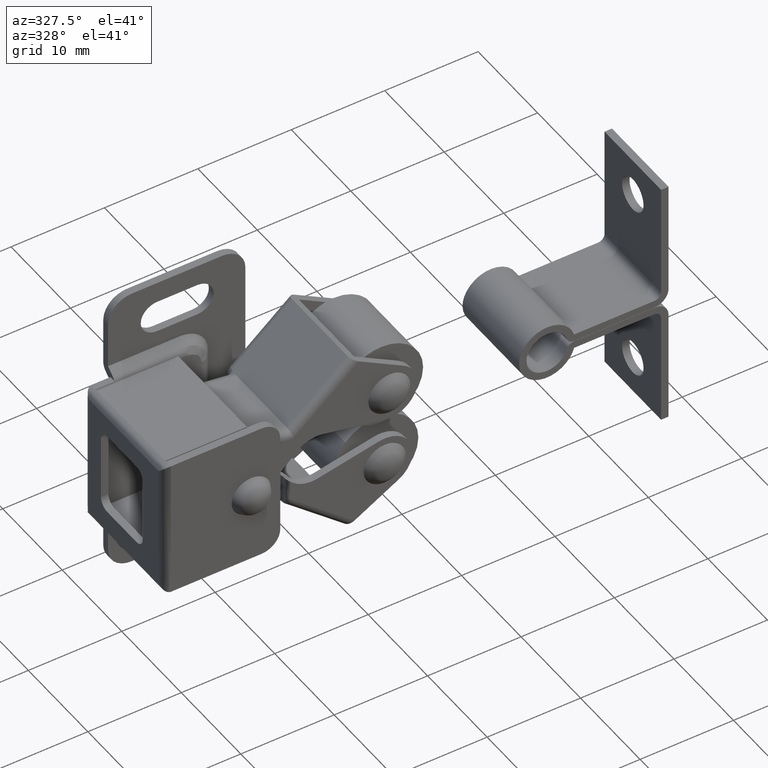
[diagram: clean part render]
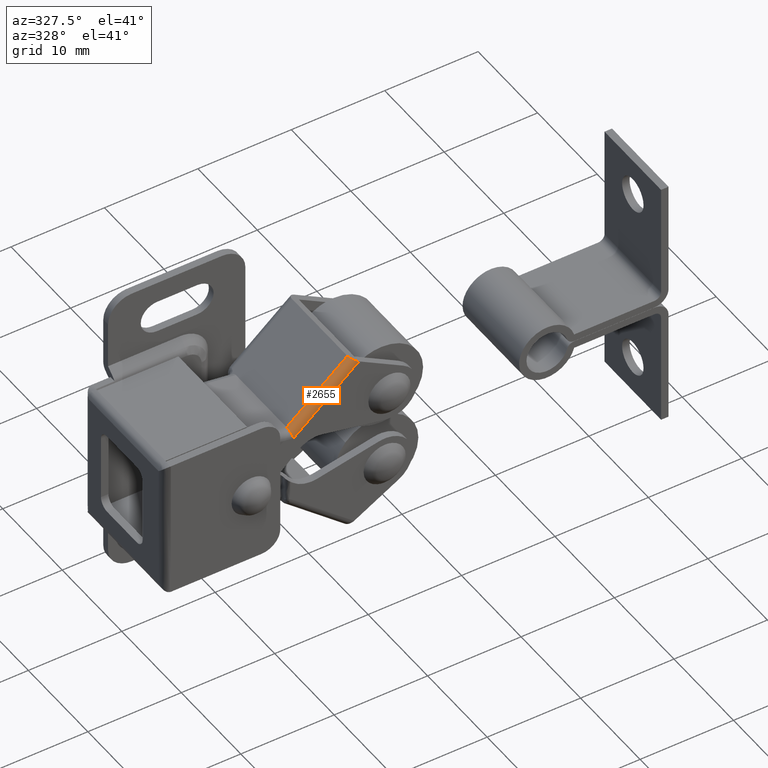
[diagram: same view with one face highlighted and labeled with its STEP entity id]
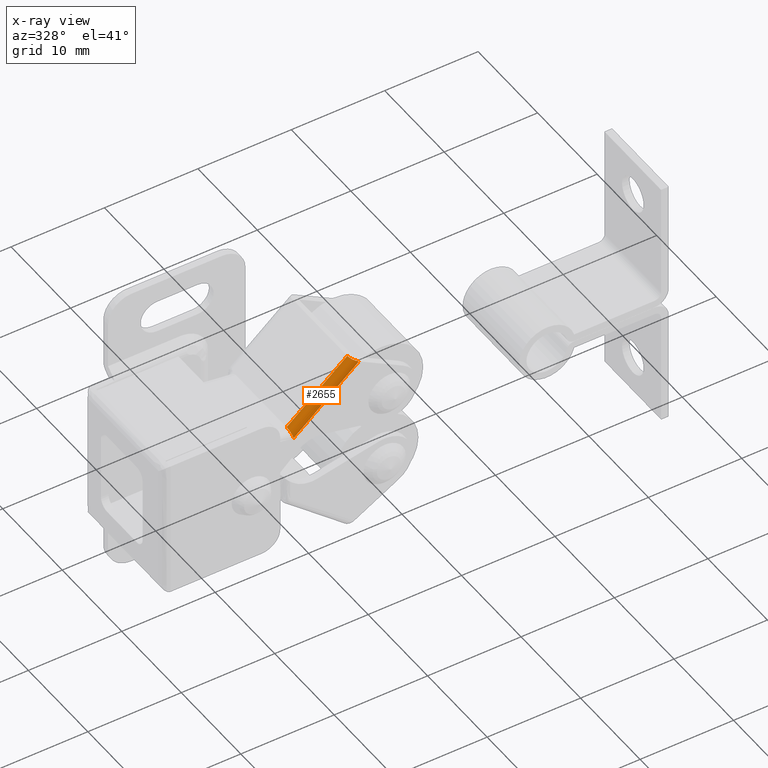
[diagram: x-ray of the same camera — body ghosted, the highlighted face saturated]
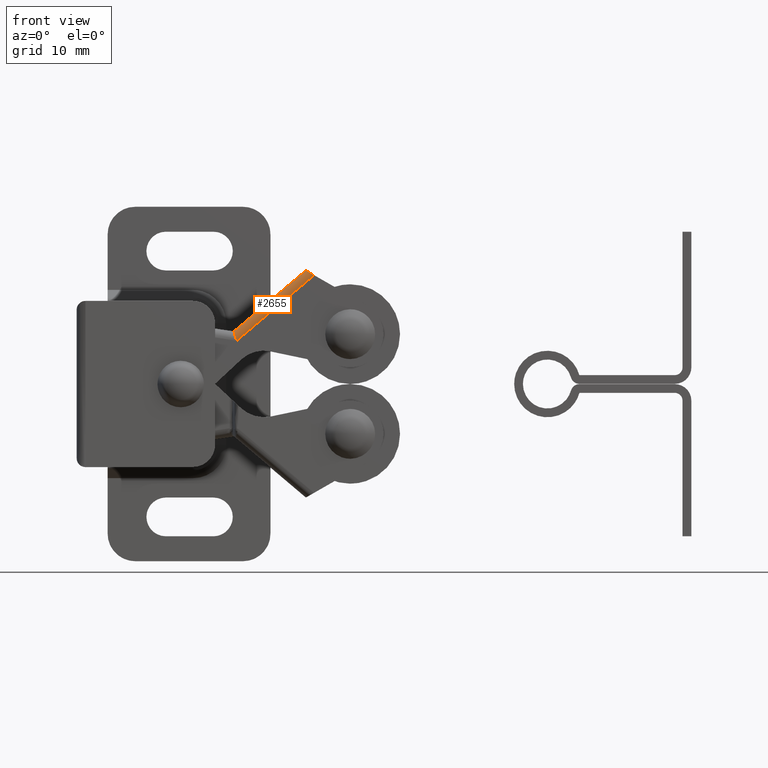
[diagram: same view with one face highlighted and labeled with its STEP entity id]
A machine part, auxiliary view. The second image highlights one B-rep face of the part: STEP entity #2655.
The next image is the same camera in x-ray: the body ghosted, the highlighted face saturated — about 0% of this face is hidden behind the body in this view.
A second angle (front view) of the same face is appended — the face is thin or edge-on in the first view.
In plain terms, the highlighted face is a freeform B-spline surface patch.
Its self-contained STEP definition (entity closure, byte-faithful):
#2597=CARTESIAN_POINT('',(21.096615134114131,-5.393018759680372,10.585547364136440));
#2598=CARTESIAN_POINT('',(13.744963370506520,-5.393018759680372,4.364918948776151));
#2599=CARTESIAN_POINT('',(21.091863143915329,-6.236010760130574,10.591163352553203));
#2600=CARTESIAN_POINT('',(13.740211380307709,-6.236010760130574,4.370534937192920));
#2601=CARTESIAN_POINT('',(21.635889734762969,-6.199238565344556,9.948222836096903));
#2602=CARTESIAN_POINT('',(14.284237971155351,-6.199238565344557,3.727594420736617));
#2610=(BOUNDED_SURFACE()B_SPLINE_SURFACE(1,2,((#2597,#2599,#2601),(#2598,#2600,#2602)),.UNSPECIFIED.,.F.,.F.,.U.)B_SPLINE_SURFACE_WITH_KNOTS((2,2),(3,3),(0.0,9.630316793093716),(0.0,1.0),.UNSPECIFIED.)GEOMETRIC_REPRESENTATION_ITEM()RATIONAL_B_SPLINE_SURFACE(((1.0,0.688354575693754,1.0),(1.0,0.688354575693754,1.0)))REPRESENTATION_ITEM('')SURFACE());
#2611=CARTESIAN_POINT('',(20.700012000000001,-5.399999988079070,10.250000000000000));
#2612=VERTEX_POINT('',#2611);
#2613=CARTESIAN_POINT('',(21.438414051276101,-6.199999988079070,9.826839497791999));
#2614=VERTEX_POINT('',#2613);
#2615=CARTESIAN_POINT('',(20.700011999999969,-5.399999988079070,10.249999999999959));
#2616=CARTESIAN_POINT('',(20.700011999999973,-6.199999958878879,10.249999999999964));
#2617=CARTESIAN_POINT('',(21.438414024324249,-6.199999988079070,9.826839513237449));
#2625=(BOUNDED_CURVE()B_SPLINE_CURVE(2,(#2615,#2616,#2617),.UNSPECIFIED.,.F.,.U.)CURVE()GEOMETRIC_REPRESENTATION_ITEM()QUASI_UNIFORM_CURVE()RATIONAL_B_SPLINE_CURVE((1.0,0.707106794091331,1.0))REPRESENTATION_ITEM(''));
#2626=EDGE_CURVE('',#2612,#2614,#2625,.T.);
#2627=ORIENTED_EDGE('',*,*,#2626,.F.);
#2628=CARTESIAN_POINT('',(14.200011999999999,-5.399999988079070,4.750000000000000));
#2629=VERTEX_POINT('',#2628);
#2630=CARTESIAN_POINT('',(14.200011999999999,-5.399999988079070,4.750000000000000));
#2631=CARTESIAN_POINT('',(20.700012000000001,-5.399999988079070,10.250000000000000));
#2632=QUASI_UNIFORM_CURVE('',1,(#2630,#2631),.UNSPECIFIED.,.F.,.U.);
#2633=EDGE_CURVE('',#2629,#2612,#2632,.T.);
#2634=ORIENTED_EDGE('',*,*,#2633,.F.);
#2635=CARTESIAN_POINT('',(14.441006066878620,-6.199999988079070,3.905955818686430));
#2636=VERTEX_POINT('',#2635);
#2637=CARTESIAN_POINT('',(14.200011999999999,-5.399999988079070,4.750000000000000));
#2638=CARTESIAN_POINT('',(14.199968051817789,-5.496195659633441,4.750153921662689));
#2639=CARTESIAN_POINT('',(14.208393726381010,-5.646978596889681,4.720644308912418));
#2640=CARTESIAN_POINT('',(14.239280680921130,-5.853130156668723,4.612467561676350));
#2641=CARTESIAN_POINT('',(14.283910477851141,-6.024389229228146,4.456158649594492));
#2642=CARTESIAN_POINT('',(14.354266244035710,-6.164593605037564,4.209748537349757));
#2643=CARTESIAN_POINT('',(14.410845338375180,-6.200031947208687,4.011589072348155));
#2644=CARTESIAN_POINT('',(14.441006066878620,-6.199999988079070,3.905955818686430));
#2645=B_SPLINE_CURVE_WITH_KNOTS('',3,(#2637,#2638,#2639,#2640,#2641,#2642,#2643,#2644),.UNSPECIFIED.,.F.,.U.,(4,1,1,1,1,4),(0.000016670012091,0.288416229449615,0.453233916045895,0.700437090686943,0.988849503711782,1.318462706157392),.UNSPECIFIED.);
#2646=EDGE_CURVE('',#2629,#2636,#2645,.T.);
#2647=ORIENTED_EDGE('',*,*,#2646,.T.);
#2648=CARTESIAN_POINT('',(21.438414051276101,-6.199999988079070,9.826839497791999));
#2649=CARTESIAN_POINT('',(14.441006066878620,-6.199999988079070,3.905955818686430));
#2650=QUASI_UNIFORM_CURVE('',1,(#2648,#2649),.UNSPECIFIED.,.F.,.U.);
#2651=EDGE_CURVE('',#2614,#2636,#2650,.T.);
#2652=ORIENTED_EDGE('',*,*,#2651,.F.);
#2653=EDGE_LOOP('',(#2627,#2634,#2647,#2652));
#2654=FACE_OUTER_BOUND('',#2653,.T.);
#2655=ADVANCED_FACE('',(#2654),#2610,.T.);